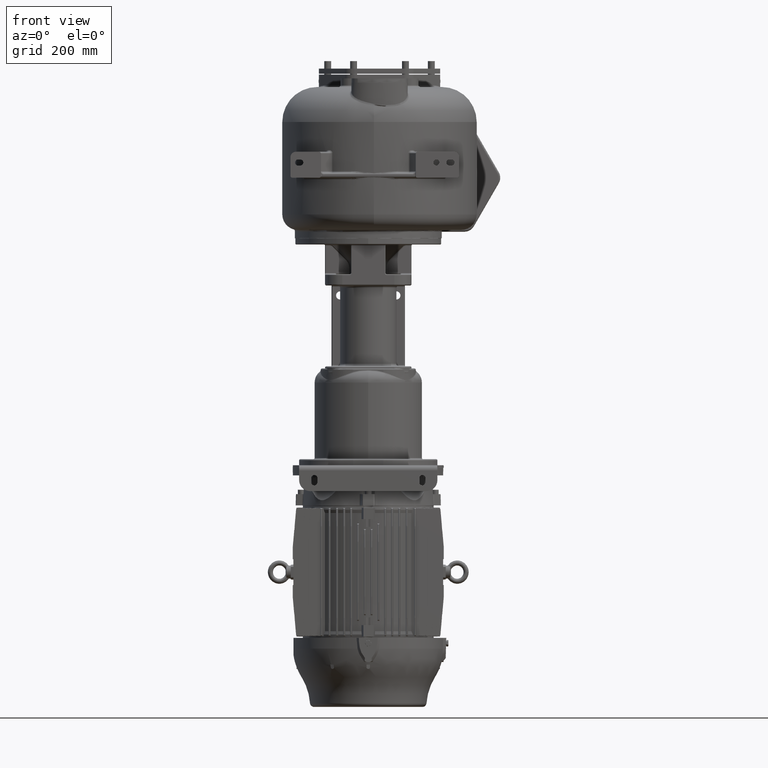
[diagram: clean part render]
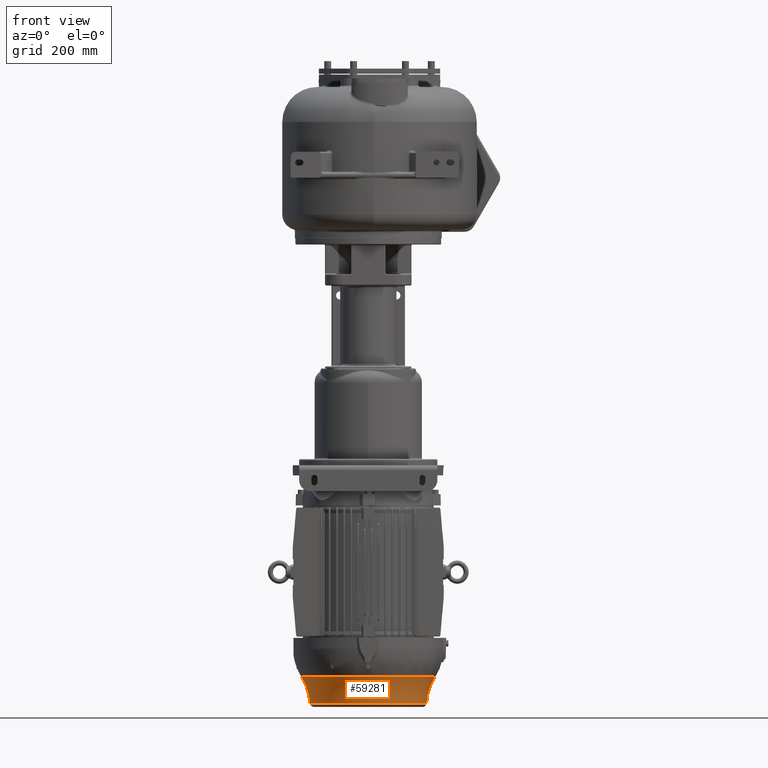
[diagram: same view with one face highlighted and labeled with its STEP entity id]
A machine part, front view. The second image highlights one B-rep face of the part: STEP entity #59281.
In plain terms, the highlighted toroidal blend (fillet) surface has major radius 264.661 mm and minor (blend) radius 130 mm.
Its self-contained STEP definition (entity closure, byte-faithful):
#1161=CARTESIAN_POINT('',(-2.646613848722E2,2.29E2,-1.259831267933E3));
#1162=DIRECTION('',(0.E0,-1.E0,0.E0));
#1163=DIRECTION('',(9.975813205155E-1,0.E0,6.950905666549E-2));
#1164=AXIS2_PLACEMENT_3D('',#1161,#1162,#1163);
#1171=CARTESIAN_POINT('',(0.E0,2.29E2,-1.190764132327E3));
#1172=DIRECTION('',(0.E0,0.E0,-1.E0));
#1173=DIRECTION('',(1.E0,0.E0,0.E0));
#1174=AXIS2_PLACEMENT_3D('',#1171,#1172,#1173);
#1176=CARTESIAN_POINT('',(2.646613848722E2,2.29E2,-1.259831267933E3));
#1177=DIRECTION('',(0.E0,1.E0,0.E0));
#1178=DIRECTION('',(-9.975813205155E-1,0.E0,6.950905666549E-2));
#1179=AXIS2_PLACEMENT_3D('',#1176,#1177,#1178);
#1186=CARTESIAN_POINT('',(0.E0,2.29E2,-1.250795090567E3));
#1187=DIRECTION('',(0.E0,0.E0,-1.E0));
#1188=DIRECTION('',(1.E0,0.E0,0.E0));
#1189=AXIS2_PLACEMENT_3D('',#1186,#1187,#1188);
#55310=CARTESIAN_POINT('',(-1.545263278780E2,2.29E2,-1.190764132327E3));
#55312=VERTEX_POINT('',#55310);
#55331=CARTESIAN_POINT('',(1.545263278780E2,2.29E2,-1.190764132327E3));
#55332=VERTEX_POINT('',#55331);
#55598=CARTESIAN_POINT('',(-1.349758132052E2,2.29E2,-1.250795090567E3));
#55600=VERTEX_POINT('',#55598);
#55632=CARTESIAN_POINT('',(1.349758132052E2,2.29E2,-1.250795090567E3));
#55633=VERTEX_POINT('',#55632);
#59269=CARTESIAN_POINT('',(0.E0,2.29E2,-1.259831267933E3));
#59270=DIRECTION('',(0.E0,0.E0,1.E0));
#59271=DIRECTION('',(1.E0,0.E0,0.E0));
#59272=AXIS2_PLACEMENT_3D('',#59269,#59270,#59271);
#59273=TOROIDAL_SURFACE('',#59272,2.646613848722E2,1.3E2);
#59274=ORIENTED_EDGE('',*,*,#59138,.F.);
#59275=ORIENTED_EDGE('',*,*,#59263,.F.);
#59277=ORIENTED_EDGE('',*,*,#59276,.T.);
#59278=ORIENTED_EDGE('',*,*,#59259,.T.);
#59279=EDGE_LOOP('',(#59274,#59275,#59277,#59278));
#59280=FACE_OUTER_BOUND('',#59279,.F.);
#59281=ADVANCED_FACE('',(#59280),#59273,.F.);
#1165=CIRCLE('',#1164,1.3E2);
#1175=CIRCLE('',#1174,1.545263278780E2);
#1180=CIRCLE('',#1179,1.3E2);
#1190=CIRCLE('',#1189,1.349758132052E2);
#59138=EDGE_CURVE('',#55332,#55312,#1175,.T.);
#59259=EDGE_CURVE('',#55600,#55312,#1165,.T.);
#59263=EDGE_CURVE('',#55633,#55332,#1180,.T.);
#59276=EDGE_CURVE('',#55633,#55600,#1190,.T.);